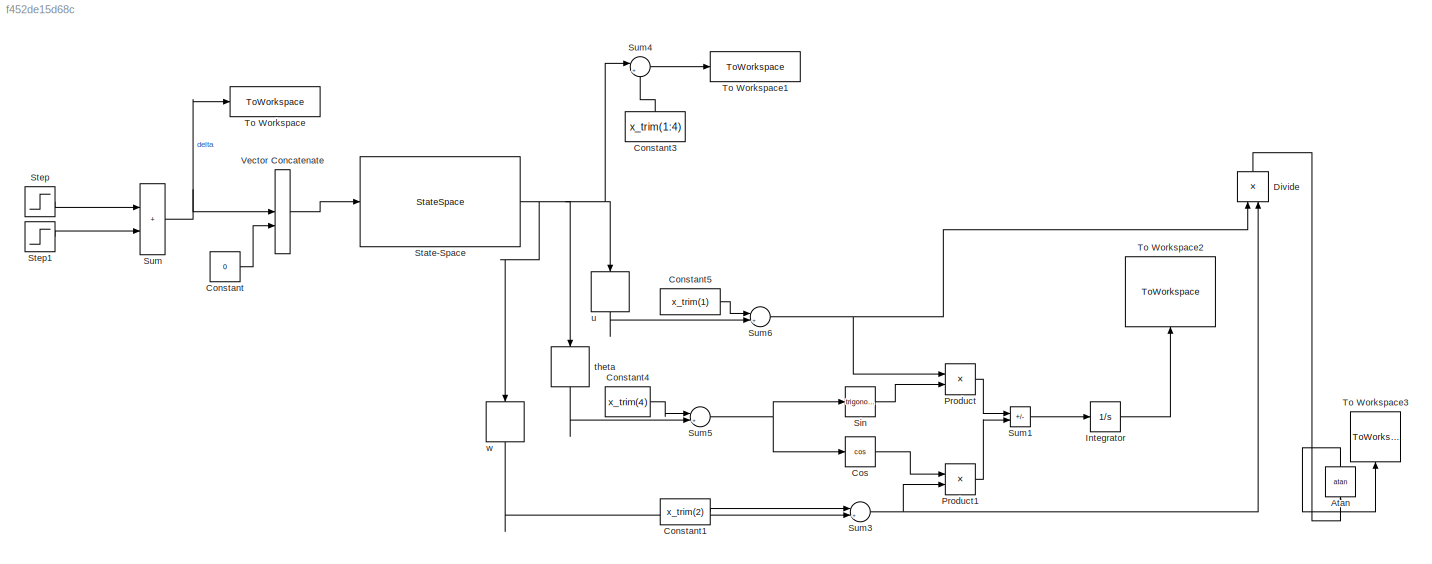
MODEL slx_f452de15d68c
KIND model
CONFIG AbsTol = auto
CONFIG EnableMultiTasking = off
CONFIG FixedStep = auto
CONFIG MaxStep = auto
CONFIG MinStep = auto
CONFIG RelTol = 1e-3
CONFIG SampleTimeConstraint = Unconstrained
CONFIG SolverName = VariableStepAuto
CONFIG StartTime = 0.0
CONFIG StopTime = 10.0
BLOCK [Trigonometry] Atan
  NameLocation = right
  Operator = atan
BLOCK [Constant] Constant
  Value = 0
BLOCK [Constant] Constant1
  Value = x_trim(2)
BLOCK [Constant] Constant3
  NameLocation = right
  Value = x_trim(1:4)
BLOCK [Constant] Constant4
  Value = x_trim(4)
BLOCK [Constant] Constant5
  Value = x_trim(1)
BLOCK [Trigonometry] Cos
  Operator = cos
BLOCK [Product] Divide
  Inputs = /*
  NameLocation = right
BLOCK [Integrator] Integrator
BLOCK [Product] Product
BLOCK [Product] Product1
BLOCK [Trigonometry] Sin
BLOCK [StateSpace] State-Space
  A = A
  B = B
  C = eye(4)
  D = zeros(4,2)
  InitialCondition = zeros(4,1)
BLOCK [Step] Step
  After = - pi/180
  SampleTime = 0
  Time = 5
BLOCK [Step] Step1
  After = (pi/180)
  SampleTime = 0
  Time = 10
BLOCK [Sum] Sum
  IconShape = rectangular
BLOCK [Sum] Sum1
  IconShape = rectangular
  Inputs = +-
BLOCK [Sum] Sum3
  Inputs = |++
BLOCK [Sum] Sum4
  Inputs = |++
BLOCK [Sum] Sum5
  Inputs = |++
BLOCK [Sum] Sum6
  Inputs = |++
BLOCK [ToWorkspace] To Workspace
  FixptAsFi = on
  MaxDataPoints = inf
  SampleTime = -1
  VariableName = delta
BLOCK [ToWorkspace] To Workspace1
  FixptAsFi = on
  MaxDataPoints = inf
  SampleTime = -1
  Save2DSignal = 2-D array (concatenate along first dimension)
  SaveFormat = Structure
  VariableName = y
BLOCK [ToWorkspace] To Workspace2
  FixptAsFi = on
  MaxDataPoints = inf
  NameLocation = right
  SampleTime = -1
  Save2DSignal = 2-D array (concatenate along first dimension)
  VariableName = h
BLOCK [ToWorkspace] To Workspace3
  FixptAsFi = on
  MaxDataPoints = inf
  NameLocation = right
  SampleTime = -1
  Save2DSignal = 2-D array (concatenate along first dimension)
  VariableName = alpha
BLOCK [Concatenate] Vector Concatenate
BLOCK [Selector] theta
  IndexOptions = Index vector (dialog)
  Indices = 4
  InputPortWidth = 4
  NameLocation = left
  OutputSizes = 1
BLOCK [Selector] u
  IndexOptions = Index vector (dialog)
  Indices = 1
  InputPortWidth = 4
  NameLocation = left
  OutputSizes = 1
BLOCK [Selector] w
  IndexOptions = Index vector (dialog)
  Indices = 2
  InputPortWidth = 4
  NameLocation = left
  OutputSizes = 1
LINE Atan:1 -> To Workspace3:1
LINE Constant1:1 -> Sum3:1
LINE Constant3:1 -> Sum4:2
LINE Constant4:1 -> Sum5:1
LINE Constant5:1 -> Sum6:1
LINE Constant:1 -> Vector Concatenate:2
LINE Cos:1 -> Product1:1
LINE Divide:1 -> Atan:1
LINE Integrator:1 -> To Workspace2:1
LINE Product1:1 -> Sum1:2
LINE Product:1 -> Sum1:1
LINE Sin:1 -> Product:2
NET State-Space:1 -> Sum4:1, theta:1, u:1, w:1
LINE Step1:1 -> Sum:2
LINE Step:1 -> Sum:1
LINE Sum1:1 -> Integrator:1
NET Sum3:1 -> Divide:2, Product1:2
LINE Sum4:1 -> To Workspace1:1
NET Sum5:1 -> Cos:1, Sin:1
NET Sum6:1 -> Divide:1, Product:1
NET Sum:1 -> To Workspace:1, Vector Concatenate:1
LINE Vector Concatenate:1 -> State-Space:1
LINE theta:1 -> Sum5:2
LINE u:1 -> Sum6:2
LINE w:1 -> Sum3:2
note: NET lines group one-source signal fan-out (src -> all destinations, sorted); 1:1 wires keep LINE
